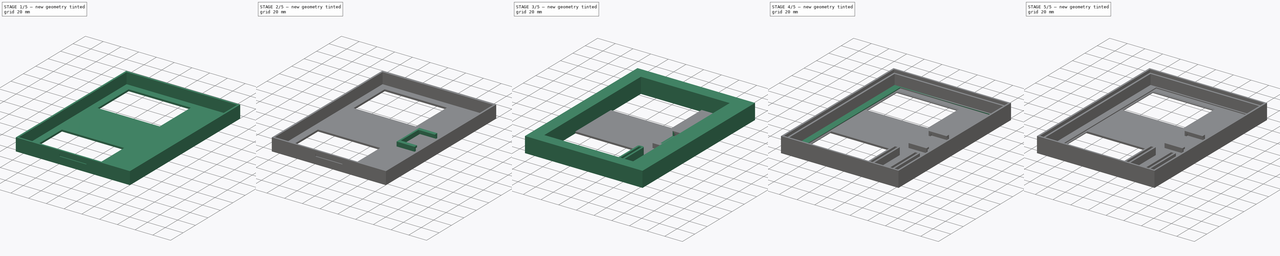
[diagram: build sequence overview — one tinted view per stage of 5, left to right]
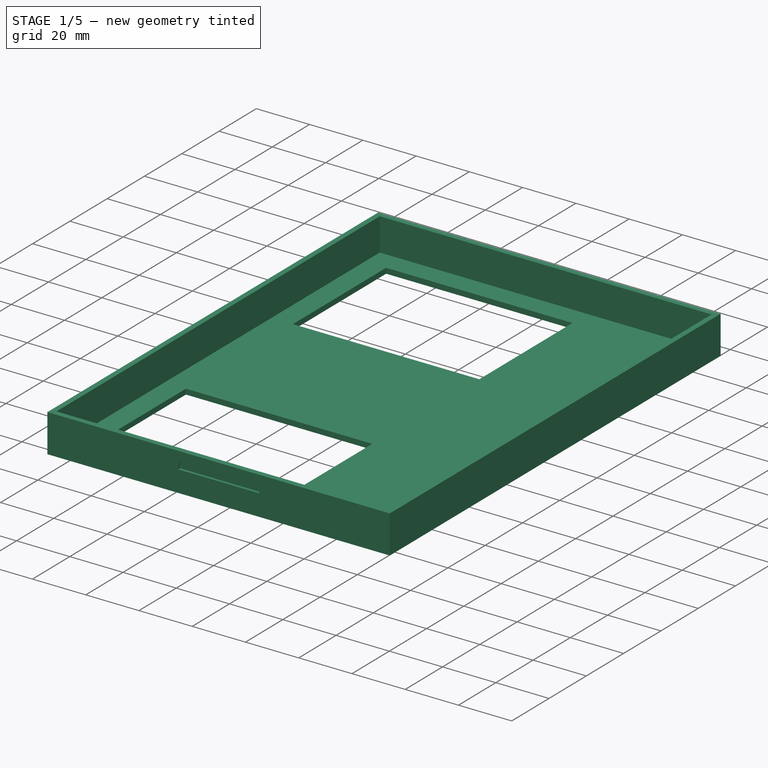
[diagram: stage 1 of 5 — iso view after this stage's code; geometry added in this stage tinted green]
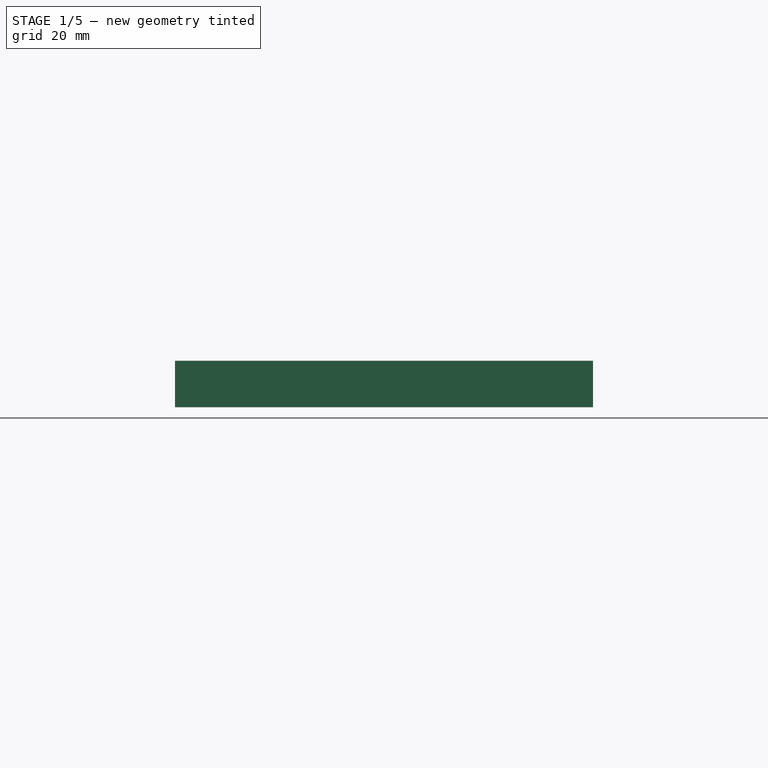
[diagram: stage 1 of 5 — front view after this stage's code; geometry added in this stage tinted green]
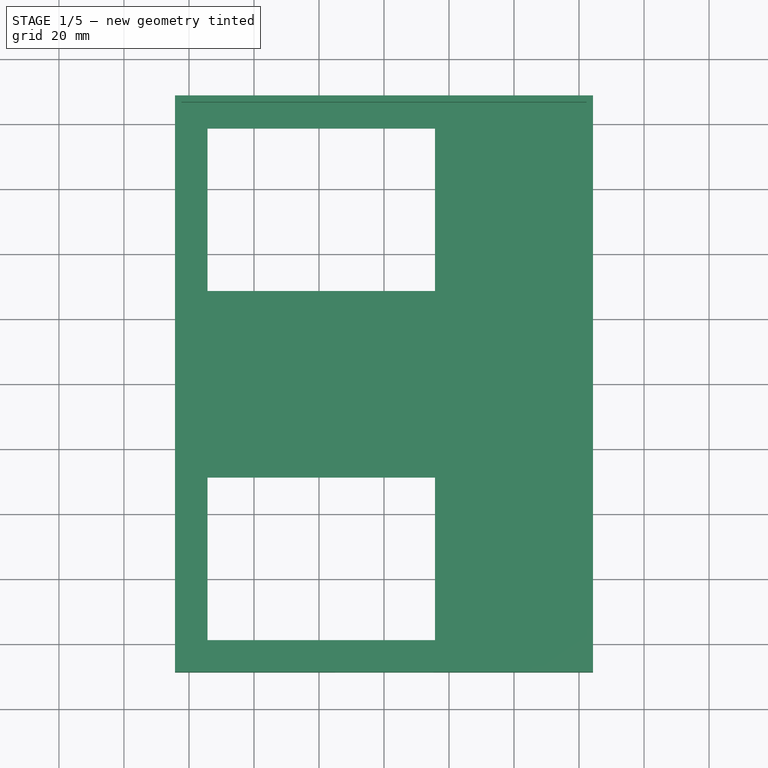
[diagram: stage 1 of 5 — top view after this stage's code; geometry added in this stage tinted green]
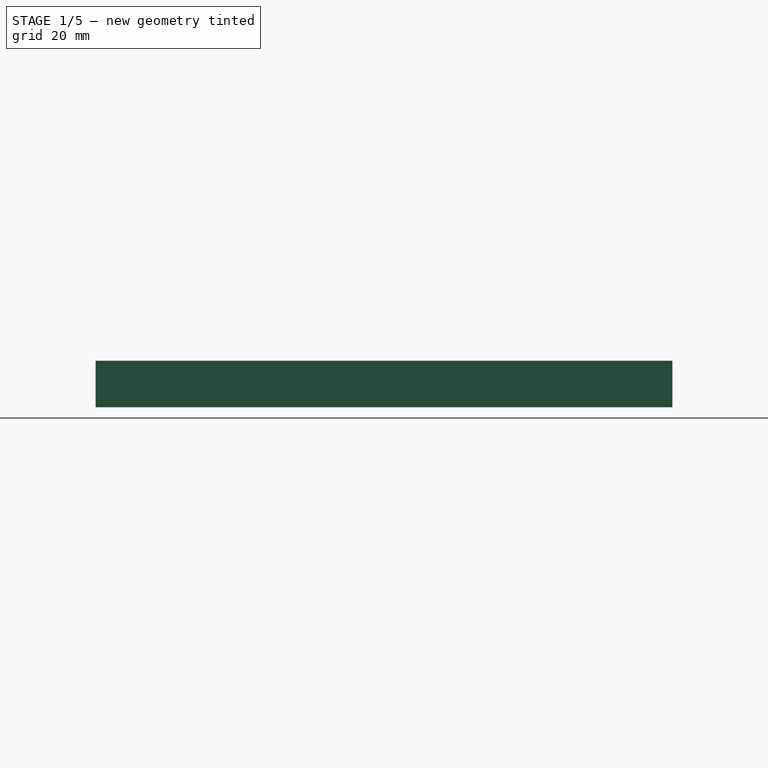
[diagram: stage 1 of 5 — right view after this stage's code; geometry added in this stage tinted green]
FCSTD DOCUMENT  (FreeCAD 1.0R39285 (Git))
Label: display_thing
License: All rights reserved
LicenseURL: https://en.wikipedia.org/wiki/All_rights_reserved
objects: Sketcher::SketchObject×16, PartDesign::Pocket×10, PartDesign::Pad×6, PartDesign::AdditiveCylinder×2, PartDesign::Body×2, PartDesign::Chamfer×1, PartDesign::Fillet×1
note: 94 computed .brp shape members not serialized (recipe doc carries the construction recipe); baked Part::Feature solids carry a one-line shape summary decoded from their .brp

FEATURE [PartDesign::Body] Body  label="frame-mount"
  AllowCompound = false
  Group = -> [Sketch,Pad,Sketch001,Pocket,Sketch002,Pocket001,Chamfer,Sketch003,Pocket002,Sketch004,Pad001,Fillet,Sketch005,Cylinder,Sketch006,Cylinder001]
  Origin = -> Origin
  Tip = -> Cylinder001
FEATURE [Sketcher::SketchObject] Sketch007  label="Insert Base Sketch"
  ArcFitTolerance = 1e-06
  AttachmentSupport = -> [XY_Plane001]
  FullyConstrained = true
  MakeInternals = false
  MapMode = 5
  sketch-geometry (8):
    g0: LineSegment [constr] StartX=0 StartY=0 StartZ=0 EndX=0 EndY=88.7 EndZ=0
    g1: LineSegment [constr] StartX=0 StartY=0 StartZ=0 EndX=0 EndY=-88.7 EndZ=0
    g2: LineSegment [constr] StartX=0 StartY=-88.7 StartZ=0 EndX=-64.3 EndY=-88.7 EndZ=0
    g3: LineSegment [constr] StartX=0 StartY=88.7 StartZ=0 EndX=64.3 EndY=88.7 EndZ=0
    g4: LineSegment StartX=-64.3 StartY=-88.7 StartZ=0 EndX=64.3 EndY=-88.7 EndZ=0
    g5: LineSegment StartX=64.3 StartY=-88.7 StartZ=0 EndX=64.3 EndY=88.7 EndZ=0
    g6: LineSegment StartX=64.3 StartY=88.7 StartZ=0 EndX=-64.3 EndY=88.7 EndZ=0
    g7: LineSegment StartX=-64.3 StartY=88.7 StartZ=0 EndX=-64.3 EndY=-88.7 EndZ=0
  constraints (22):
    c: Distance(g0) = 88.7
    c: Coincident(g0,g-1)
    c: PointOnObject(g0,g-2)
    c: Distance(g1) = 88.7
    c: Coincident(g1,g0)
    c: PointOnObject(g1,g-2)
    c: Distance(g2) = 64.3
    c: Coincident(g2,g1)
    c: Horizontal(g2)
    c: Distance(g3) = 64.3
    c: Coincident(g3,g0)
    c: Horizontal(g3)
    c: Coincident(g4,g5)
    c: Coincident(g5,g6)
    c: Coincident(g6,g7)
    c: Coincident(g7,g4)
    c: Horizontal(g4)
    c: Horizontal(g6)
    c: Vertical(g5)
    c: Vertical(g7)
    c: Coincident(g4,g2)
    c: Coincident(g5,g3)
FEATURE [PartDesign::Pad] Pad002  label="Insert Base"
  Direction = (0,0,1)
  Length = 14.3
  Length2 = 10
  Profile = -> Sketch007
  ReferenceAxis = -> Sketch007 [N_Axis]
  Refine = true
  Suppressed = false
  Type = 0
FEATURE [Sketcher::SketchObject] Sketch008  label="Insert Base Inset Sketch"
  ArcFitTolerance = 1e-06
  AttachmentSupport = -> [Pad002]
  ExternalGeometry = -> [Pad002]
  FullyConstrained = true
  MakeInternals = false
  MapMode = 5
  Placement = pos=(0,0,14.3) rot=(0,0,1;0rad)
  sketch-geometry (24):
    g0: LineSegment StartX=-62.3 StartY=86.7 StartZ=0 EndX=-62.3 EndY=-86.7 EndZ=0
    g1: LineSegment StartX=-62.3 StartY=-86.7 StartZ=0 EndX=62.3 EndY=-86.7 EndZ=0
    g2: LineSegment StartX=62.3 StartY=-86.7 StartZ=0 EndX=62.3 EndY=86.7 EndZ=0
    g3: LineSegment StartX=62.3 StartY=86.7 StartZ=0 EndX=-62.3 EndY=86.7 EndZ=0
    g4: LineSegment [constr] StartX=-64.3 StartY=88.7 StartZ=0 EndX=-44.3 EndY=88.7 EndZ=0
    g5: LineSegment [constr] StartX=-62.3 StartY=68.7 StartZ=0 EndX=-64.3 EndY=68.7 EndZ=0
    g6: LineSegment [constr] StartX=-44.3 StartY=88.7 StartZ=0 EndX=-44.3 EndY=86.7 EndZ=0
    g7: LineSegment [constr] StartX=-64.3 StartY=88.7 StartZ=0 EndX=-64.3 EndY=68.7 EndZ=0
    g8: LineSegment [constr] StartX=64.3 StartY=88.7 StartZ=0 EndX=64.3 EndY=68.7 EndZ=0
    g9: LineSegment [constr] StartX=-64.3 StartY=-88.7 StartZ=0 EndX=-44.3 EndY=-88.7 EndZ=0
    g10: LineSegment [constr] StartX=-44.3 StartY=-88.7 StartZ=0 EndX=-44.3 EndY=-86.7 EndZ=0
    g11: LineSegment [constr] StartX=64.3 StartY=68.7 StartZ=0 EndX=62.3 EndY=68.7 EndZ=0
    g12: LineSegment StartX=-54.3 StartY=78.7 StartZ=0 EndX=-54.3 EndY=28.7 EndZ=0
    g13: LineSegment StartX=-54.3 StartY=28.7 StartZ=0 EndX=15.7 EndY=28.7 EndZ=0
    g14: LineSegment StartX=15.7 StartY=28.7 StartZ=0 EndX=15.7 EndY=78.7 EndZ=0
    g15: LineSegment StartX=15.7 StartY=78.7 StartZ=0 EndX=-54.3 EndY=78.7 EndZ=0
    g16: LineSegment [constr] StartX=-54.3 StartY=28.7 StartZ=0 EndX=-54.3 EndY=-28.7 EndZ=0
    g17: LineSegment StartX=-54.3 StartY=-28.7 StartZ=0 EndX=-54.3 EndY=-78.7 EndZ=0
    g18: LineSegment StartX=-54.3 StartY=-78.7 StartZ=0 EndX=15.7 EndY=-78.7 EndZ=0
    g19: LineSegment StartX=15.7 StartY=-78.7 StartZ=0 EndX=15.7 EndY=-28.7 EndZ=0
    g20: LineSegment StartX=15.7 StartY=-28.7 StartZ=0 EndX=-54.3 EndY=-28.7 EndZ=0
    g21: LineSegment [constr] StartX=-54.3 StartY=53.7 StartZ=0 EndX=-62.3 EndY=53.7 EndZ=0
    g22: LineSegment [constr] StartX=-1.6e-15 StartY=86.7 StartZ=0 EndX=-1.6e-15 EndY=78.7 EndZ=0
    g23: LineSegment [constr] StartX=-7e-16 StartY=-78.7 StartZ=0 EndX=-7e-16 EndY=-86.7 EndZ=0
  constraints (71):
    c: Coincident(g0,g1)
    c: Coincident(g1,g2)
    c: Coincident(g2,g3)
    c: Coincident(g3,g0)
    c: Vertical(g0)
    c: Vertical(g2)
    c: Horizontal(g1)
    c: Horizontal(g3)
    c: Distance(g4) = 20
    c: Coincident(g4,g-4)
    c: PointOnObject(g4,g-3)
    c: PointOnObject(g5,g0)
    c: Horizontal(g5)
    c: Distance(g5) = 2
    c: Distance(g6) = 2
    c: Coincident(g6,g4)
    c: PointOnObject(g6,g3)
    c: Vertical(g6)
    c: Vertical(g7)
    c: Coincident(g7,g4)
    c: Coincident(g7,g5)
    c: Distance(g7) = 20
    c: Distance(g8) = 20
    c: Coincident(g8,g-3)
    c: Vertical(g8)
    c: Distance(g9) = 20
    c: Coincident(g9,g-4)
    c: Horizontal(g9)
    c: Vertical(g10)
    c: Coincident(g10,g9)
    c: PointOnObject(g10,g1)
    c: Distance(g10) = 2
    c: Horizontal(g11)
    c: Coincident(g11,g8)
    c: PointOnObject(g11,g2)
    c: Distance(g11) = 2
    c: Coincident(g12,g13)
    c: Coincident(g13,g14)
    c: Coincident(g14,g15)
    c: Coincident(g15,g12)
    c: Vertical(g12)
    c: Vertical(g14)
    c: Horizontal(g13)
    c: Horizontal(g15)
    c: Vertical(g16)
    c: Coincident(g16,g12)
    c: Coincident(g17,g18)
    c: Coincident(g18,g19)
    c: Coincident(g19,g20)
    c: Coincident(g20,g17)
    c: Vertical(g17)
    c: Vertical(g19)
    c: Horizontal(g18)
    c: Horizontal(g20)
    c: Coincident(g17,g16)
    c: Equal(g12,g17)
    c: Equal(g15,g20)
    c: Distance(g12) = 50
    c: Horizontal(g21)
    c: Symmetric(g12,g12,g21)
    c: PointOnObject(g21,g0)
    c: Distance(g22) = 8
    c: Symmetric(g3,g3,g22)
    c: PointOnObject(g22,g15)
    c: Vertical(g22)
    c: Vertical(g23)
    c: PointOnObject(g23,g18)
    c: Symmetric(g1,g1,g23)
    c: Equal(g22,g23)
    c: Distance(g13) = 70
    c: Distance(g21) = 8
FEATURE [PartDesign::Pocket] Pocket003  label="Insert Base Inset"
  BaseFeature = -> Pad002
  Direction = (0,0,-1)
  Length = 12.3
  Length2 = 5
  Profile = -> Sketch008
  ReferenceAxis = -> Sketch008 [N_Axis]
  Refine = true
  Suppressed = false
  Type = 0
FEATURE [PartDesign::Pocket] Pocket004  label="Base Leftover"
  BaseFeature = -> Pocket003
  Direction = (0,0,-1)
  Length = 14.3
  Length2 = 5
  Profile = -> Pocket003 [Face21,Face20]
  Refine = true
  Suppressed = false
  Type = 0
FEATURE [Sketcher::SketchObject] Sketch009  label="Insert Bottom Mount Inset Sketch"
  ArcFitTolerance = 1e-06
  AttachmentSupport = -> [Pocket004]
  FullyConstrained = true
  MakeInternals = false
  MapMode = 5
  Placement = pos=(0,-88.7,0) rot=(1,0,0;1.5708rad)
  sketch-geometry (8):
    g0: LineSegment [constr] StartX=0 StartY=0 StartZ=0 EndX=0 EndY=8 EndZ=0
    g1: LineSegment [constr] StartX=0 StartY=8 StartZ=0 EndX=15.2 EndY=8 EndZ=0
    g2: LineSegment [constr] StartX=0 StartY=8 StartZ=0 EndX=-15.2 EndY=8 EndZ=0
    g3: LineSegment [constr] StartX=15.2 StartY=8 StartZ=0 EndX=15.2 EndY=10.6 EndZ=0
    g4: LineSegment StartX=-15.2 StartY=8 StartZ=0 EndX=15.2 EndY=8 EndZ=0
    g5: LineSegment StartX=15.2 StartY=8 StartZ=0 EndX=15.2 EndY=10.6 EndZ=0
    g6: LineSegment StartX=15.2 StartY=10.6 StartZ=0 EndX=-15.2 EndY=10.6 EndZ=0
    g7: LineSegment StartX=-15.2 StartY=10.6 StartZ=0 EndX=-15.2 EndY=8 EndZ=0
  constraints (22):
    c: Distance(g0) = 8
    c: Coincident(g0,g-1)
    c: PointOnObject(g0,g-2)
    c: Distance(g1) = 15.2
    c: Coincident(g1,g0)
    c: Horizontal(g1)
    c: Distance(g2) = 15.2
    c: Coincident(g2,g0)
    c: Horizontal(g2)
    c: Distance(g3) = 2.6
    c: Coincident(g3,g1)
    c: Vertical(g3)
    c: Coincident(g4,g5)
    c: Coincident(g5,g6)
    c: Coincident(g6,g7)
    c: Coincident(g7,g4)
    c: Horizontal(g4)
    c: Horizontal(g6)
    c: Vertical(g5)
    c: Vertical(g7)
    c: Coincident(g4,g2)
    c: Coincident(g5,g3)
FEATURE [PartDesign::Pocket] Pocket005  label="Insert Bottom Mount Inset"
  BaseFeature = -> Pocket004
  Direction = (0,1,-2e-16)
  Length = 1
  Length2 = 5
  Profile = -> Sketch009
  ReferenceAxis = -> Sketch009 [N_Axis]
  Refine = true
  Suppressed = false
  Type = 0
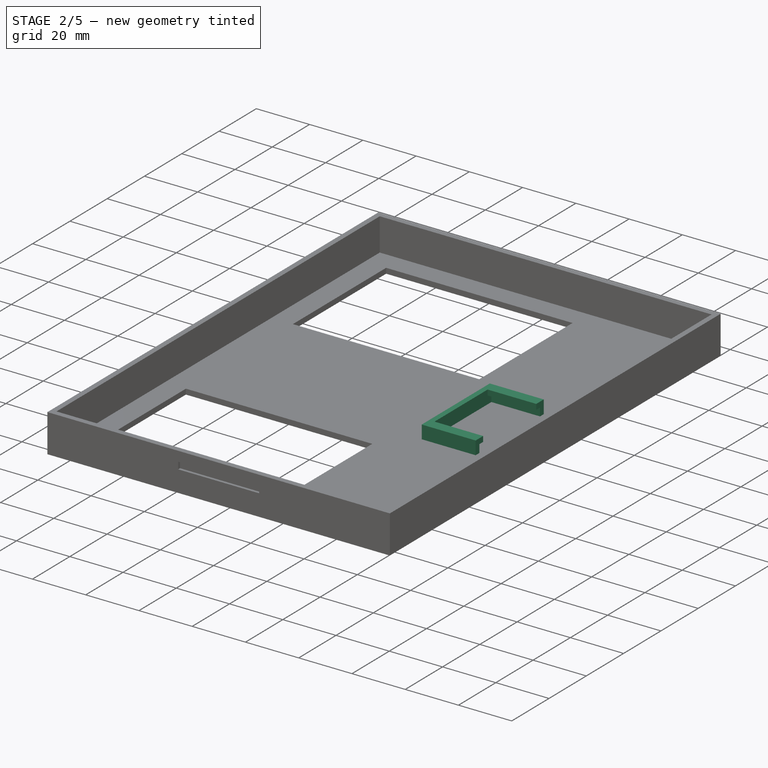
[diagram: stage 2 of 5 — iso view after this stage's code; geometry added in this stage tinted green]
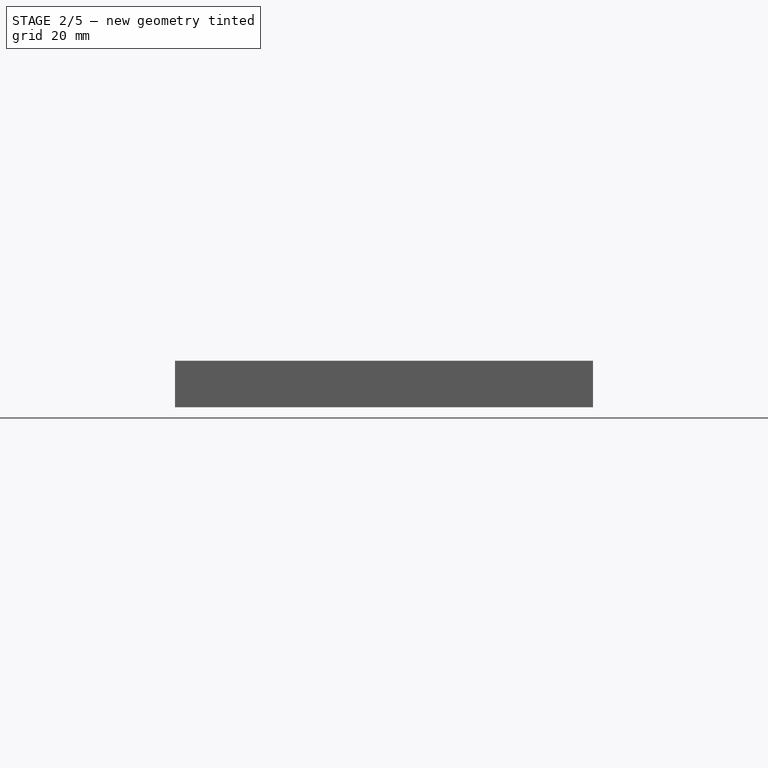
[diagram: stage 2 of 5 — front view after this stage's code; geometry added in this stage tinted green]
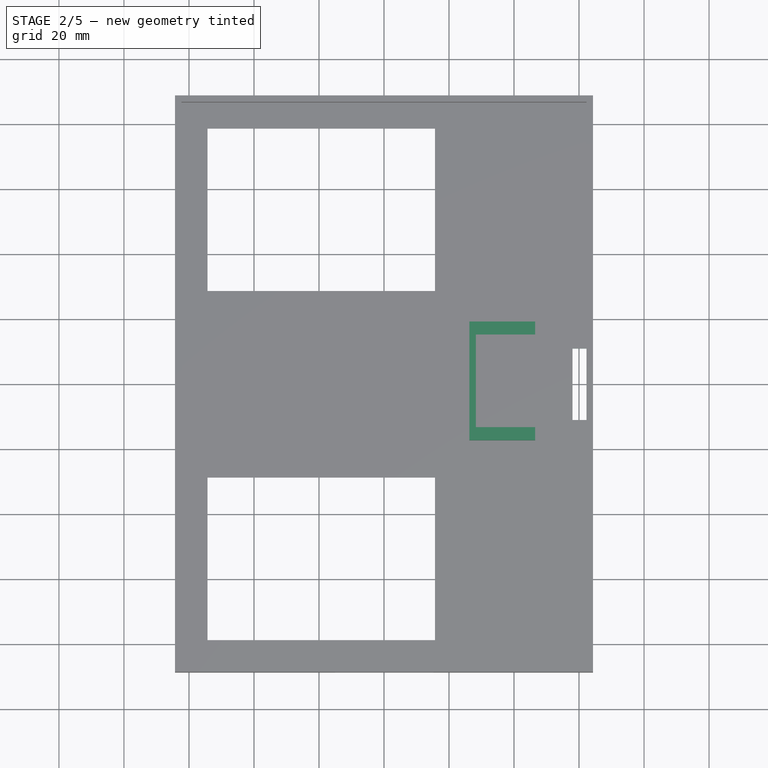
[diagram: stage 2 of 5 — top view after this stage's code; geometry added in this stage tinted green]
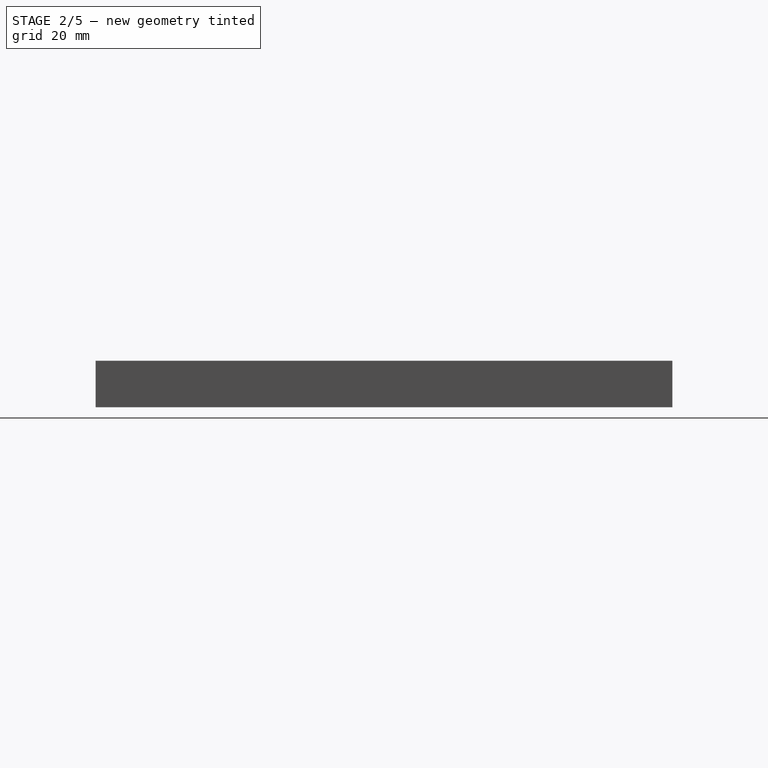
[diagram: stage 2 of 5 — right view after this stage's code; geometry added in this stage tinted green]
FEATURE [Sketcher::SketchObject] Sketch010  label="Insert Top Mount Inset Sketch"
  ArcFitTolerance = 1e-06
  AttachmentSupport = -> [Pocket005]
  FullyConstrained = true
  MakeInternals = false
  MapMode = 5
  Placement = pos=(0,88.7,0) rot=(0,0.707107,0.707107;3.14159rad)
  sketch-geometry (8):
    g0: LineSegment [constr] StartX=0 StartY=0 StartZ=0 EndX=0 EndY=8 EndZ=0
    g1: LineSegment [constr] StartX=0 StartY=8 StartZ=0 EndX=15.2 EndY=8 EndZ=0
    g2: LineSegment [constr] StartX=0 StartY=8 StartZ=0 EndX=-15.2 EndY=8 EndZ=0
    g3: LineSegment [constr] StartX=15.2 StartY=8 StartZ=0 EndX=15.2 EndY=10.6 EndZ=0
    g4: LineSegment StartX=15.2 StartY=10.6 StartZ=0 EndX=-15.2 EndY=10.6 EndZ=0
    g5: LineSegment StartX=-15.2 StartY=10.6 StartZ=0 EndX=-15.2 EndY=8 EndZ=0
    g6: LineSegment StartX=-15.2 StartY=8 StartZ=0 EndX=15.2 EndY=8 EndZ=0
    g7: LineSegment StartX=15.2 StartY=8 StartZ=0 EndX=15.2 EndY=10.6 EndZ=0
  constraints (22):
    c: Distance(g0) = 8
    c: Coincident(g0,g-1)
    c: PointOnObject(g0,g-2)
    c: Distance(g1) = 15.2
    c: Coincident(g1,g0)
    c: Horizontal(g1)
    c: Distance(g2) = 15.2
    c: Coincident(g2,g0)
    c: Horizontal(g2)
    c: Distance(g3) = 2.6
    c: Coincident(g3,g1)
    c: Vertical(g3)
    c: Coincident(g4,g5)
    c: Coincident(g5,g6)
    c: Coincident(g6,g7)
    c: Coincident(g7,g4)
    c: Horizontal(g4)
    c: Horizontal(g6)
    c: Vertical(g5)
    c: Vertical(g7)
    c: Coincident(g4,g3)
    c: Coincident(g5,g2)
FEATURE [PartDesign::Pocket] Pocket006  label="Insert Top Mount Inset"
  BaseFeature = -> Pocket005
  Direction = (0,-1,2e-16)
  Length = 1
  Length2 = 5
  Profile = -> Sketch010
  ReferenceAxis = -> Sketch010 [N_Axis]
  Refine = true
  Suppressed = false
  Type = 0
FEATURE [Sketcher::SketchObject] Sketch013  label="Insert Screen Cable Inset Sketch"
  ArcFitTolerance = 1e-06
  AttachmentSupport = -> [XY_Plane]
  FullyConstrained = true
  MakeInternals = false
  MapMode = 5
  sketch-geometry (8):
    g0: LineSegment [constr] StartX=0 StartY=0 StartZ=0 EndX=58 EndY=0 EndZ=0
    g1: LineSegment [constr] StartX=58 StartY=0 StartZ=0 EndX=58 EndY=11 EndZ=0
    g2: LineSegment [constr] StartX=58 StartY=0 StartZ=0 EndX=58 EndY=-11 EndZ=0
    g3: LineSegment [constr] StartX=58 StartY=-11 StartZ=0 EndX=62.3 EndY=-11 EndZ=0
    g4: LineSegment StartX=58 StartY=11 StartZ=0 EndX=58 EndY=-11 EndZ=0
    g5: LineSegment StartX=58 StartY=-11 StartZ=0 EndX=62.3 EndY=-11 EndZ=0
    g6: LineSegment StartX=62.3 StartY=-11 StartZ=0 EndX=62.3 EndY=11 EndZ=0
    g7: LineSegment StartX=62.3 StartY=11 StartZ=0 EndX=58 EndY=11 EndZ=0
  constraints (22):
    c: Distance(g0) = 58
    c: Coincident(g0,g-1)
    c: PointOnObject(g0,g-1)
    c: Distance(g1) = 11
    c: Coincident(g1,g0)
    c: Vertical(g1)
    c: Distance(g2) = 11
    c: Coincident(g2,g0)
    c: Vertical(g2)
    c: Distance(g3) = 4.3
    c: Coincident(g3,g2)
    c: Horizontal(g3)
    c: Coincident(g4,g5)
    c: Coincident(g5,g6)
    c: Coincident(g6,g7)
    c: Coincident(g7,g4)
    c: Vertical(g4)
    c: Vertical(g6)
    c: Horizontal(g5)
    c: Horizontal(g7)
    c: Coincident(g4,g1)
    c: Coincident(g5,g3)
FEATURE [PartDesign::Pocket] Pocket008  label="Insert Screen Cable Inset"
  BaseFeature = -> Pocket006
  Direction = (0,0,-1)
  Length = 4
  Length2 = 5
  Midplane = true
  Profile = -> Sketch013
  ReferenceAxis = -> Sketch013 [N_Axis]
  Refine = true
  Suppressed = false
  Type = 0
FEATURE [Sketcher::SketchObject] Sketch014  label="Screen Cable Adapter Mount Sketch"
  ArcFitTolerance = 1e-06
  AttachmentSupport = -> [Pocket008]
  ExternalGeometry = -> [Pocket008]
  FullyConstrained = true
  MakeInternals = false
  MapMode = 5
  Placement = pos=(0,0,2) rot=(0,0,1;0rad)
  sketch-geometry (14):
    g0: LineSegment [constr] StartX=58 StartY=11 StartZ=0 EndX=58 EndY=9 EndZ=0
    g1: LineSegment [constr] StartX=58 StartY=-11 StartZ=0 EndX=58 EndY=-7 EndZ=0
    g2: LineSegment [constr] StartX=58 StartY=9 StartZ=0 EndX=58 EndY=1 EndZ=0
    g3: LineSegment [constr] StartX=58 StartY=1 StartZ=0 EndX=46.5 EndY=1 EndZ=0
    g4: LineSegment [constr] StartX=46.5 StartY=1 StartZ=0 EndX=46.5 EndY=17.25 EndZ=0
    g5: LineSegment [constr] StartX=46.5 StartY=1 StartZ=0 EndX=46.5 EndY=-15.25 EndZ=0
    g6: LineSegment StartX=46.5 StartY=17.25 StartZ=0 EndX=46.5 EndY=19.25 EndZ=0
    g7: LineSegment StartX=46.5 StartY=19.25 StartZ=0 EndX=26.25 EndY=19.25 EndZ=0
    g8: LineSegment StartX=26.25 StartY=19.25 StartZ=0 EndX=26.25 EndY=-17.25 EndZ=0
    g9: LineSegment StartX=26.25 StartY=-17.25 StartZ=0 EndX=46.5 EndY=-17.25 EndZ=0
    g10: LineSegment StartX=46.5 StartY=-17.25 StartZ=0 EndX=46.5 EndY=-15.25 EndZ=0
    g11: LineSegment StartX=46.5 StartY=-15.25 StartZ=0 EndX=28.25 EndY=-15.25 EndZ=0
    g12: LineSegment StartX=28.25 StartY=-15.25 StartZ=0 EndX=28.25 EndY=17.25 EndZ=0
    g13: LineSegment StartX=28.25 StartY=17.25 StartZ=0 EndX=46.5 EndY=17.25 EndZ=0
  constraints (40):
    c: Distance(g0) = 2
    c: Coincident(g0,g-3)
    c: PointOnObject(g0,g-3)
    c: Distance(g1) = 4
    c: Coincident(g1,g-3)
    c: PointOnObject(g1,g-3)
    c: Distance(g2) = 8
    c: Coincident(g2,g0)
    c: PointOnObject(g2,g-3)
    c: Distance(g3) = 11.5
    c: Coincident(g3,g2)
    c: Horizontal(g3)
    c: Distance(g4) = 16.25
    c: Coincident(g4,g3)
    c: Vertical(g4)
    c: Distance(g5) = 16.25
    c: Coincident(g5,g3)
    c: Vertical(g5)
    c: Coincident(g4,g6)
    c: Vertical(g6)
    c: Coincident(g6,g7)
    c: Horizontal(g7)
    c: Coincident(g7,g8)
    c: Vertical(g8)
    c: Coincident(g8,g9)
    c: Horizontal(g9)
    c: Coincident(g9,g10)
    c: Coincident(g10,g5)
    c: Vertical(g10)
    c: Coincident(g10,g11)
    c: Horizontal(g11)
    c: Coincident(g11,g12)
    c: Vertical(g12)
    c: Coincident(g12,g13)
    c: Coincident(g13,g6)
    c: DistanceY(g6,g6) = 2
    c: Distance(g10) = 2
    c: Angle(g12,g13) = 1.5708
    c: Distance(g13) = 18.25
    c: Distance(g7) = 20.25
FEATURE [PartDesign::Pad] Pad003  label="Screen Cable Adapter Mount"
  BaseFeature = -> Pocket008
  Direction = (0,0,1)
  Length = 5
  Length2 = 10
  Profile = -> Sketch014
  ReferenceAxis = -> Sketch014 [N_Axis]
  Refine = true
  Suppressed = false
  Type = 0
FEATURE [Sketcher::SketchObject] Sketch015  label="Screen Cable Adapter Mount Holder Sketch"
  ArcFitTolerance = 1e-06
  AttachmentSupport = -> [Pad003]
  ExternalGeometry = -> [Pad003]
  FullyConstrained = true
  MakeInternals = false
  MapMode = 5
  Placement = pos=(28.25,0,0) rot=(0.57735,0.57735,0.57735;2.0944rad)
  sketch-geometry (12):
    g0: LineSegment [constr] StartX=-15.25 StartY=2 StartZ=0 EndX=-13.25 EndY=2 EndZ=0
    g1: LineSegment [constr] StartX=17.25 StartY=2 StartZ=0 EndX=15.25 EndY=2 EndZ=0
    g2: LineSegment [constr] StartX=-13.25 StartY=2 StartZ=0 EndX=-13.25 EndY=5 EndZ=0
    g3: LineSegment [constr] StartX=15.25 StartY=2 StartZ=0 EndX=15.25 EndY=5 EndZ=0
    g4: LineSegment StartX=-15.25 StartY=7 StartZ=0 EndX=-15.25 EndY=5 EndZ=0
    g5: LineSegment StartX=-15.25 StartY=5 StartZ=0 EndX=-13.25 EndY=5 EndZ=0
    g6: LineSegment StartX=-13.25 StartY=5 StartZ=0 EndX=-13.25 EndY=7 EndZ=0
    g7: LineSegment StartX=-13.25 StartY=7 StartZ=0 EndX=-15.25 EndY=7 EndZ=0
    g8: LineSegment StartX=17.25 StartY=7 StartZ=0 EndX=15.25 EndY=7 EndZ=0
    g9: LineSegment StartX=15.25 StartY=7 StartZ=0 EndX=15.25 EndY=5 EndZ=0
    g10: LineSegment StartX=15.25 StartY=5 StartZ=0 EndX=17.25 EndY=5 EndZ=0
    g11: LineSegment StartX=17.25 StartY=5 StartZ=0 EndX=17.25 EndY=7 EndZ=0
  constraints (32):
    c: Distance(g0) = 2
    c: Coincident(g0,g-3)
    c: PointOnObject(g0,g-3)
    c: Distance(g1) = 2
    c: Coincident(g1,g-3)
    c: PointOnObject(g1,g-3)
    c: Distance(g2) = 3
    c: Coincident(g2,g0)
    c: Vertical(g2)
    c: Distance(g3) = 3
    c: Coincident(g3,g1)
    c: Vertical(g3)
    c: Coincident(g4,g5)
    c: Coincident(g5,g6)
    c: Coincident(g6,g7)
    c: Coincident(g7,g4)
    c: Vertical(g4)
    c: Vertical(g6)
    c: Horizontal(g5)
    c: Horizontal(g7)
    c: Coincident(g4,g-4)
    c: Coincident(g5,g2)
    c: Coincident(g8,g9)
    c: Coincident(g9,g10)
    c: Coincident(g10,g11)
    c: Coincident(g11,g8)
    c: Horizontal(g8)
    c: Horizontal(g10)
    c: Vertical(g9)
    c: Vertical(g11)
    c: Coincident(g8,g-5)
    c: Coincident(g9,g3)
FEATURE [PartDesign::Pad] Pad004  label="Screen Cable Adapter Mount Holder"
  BaseFeature = -> Pad003
  Direction = (1,0,0)
  Length = 18.25
  Length2 = 10
  Profile = -> Sketch015
  ReferenceAxis = -> Sketch015 [N_Axis]
  Refine = true
  Suppressed = false
  Type = 0
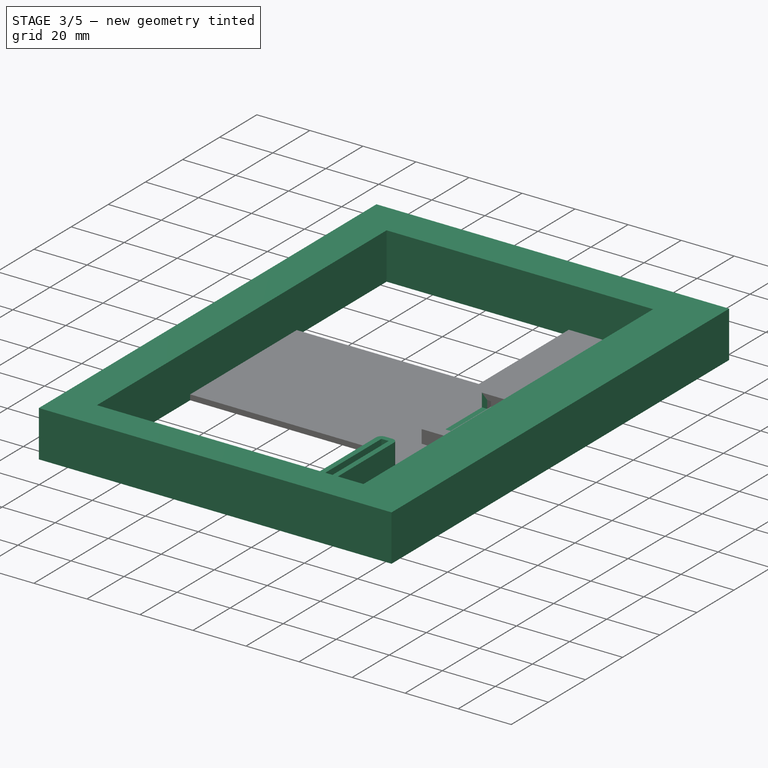
[diagram: stage 3 of 5 — iso view after this stage's code; geometry added in this stage tinted green]
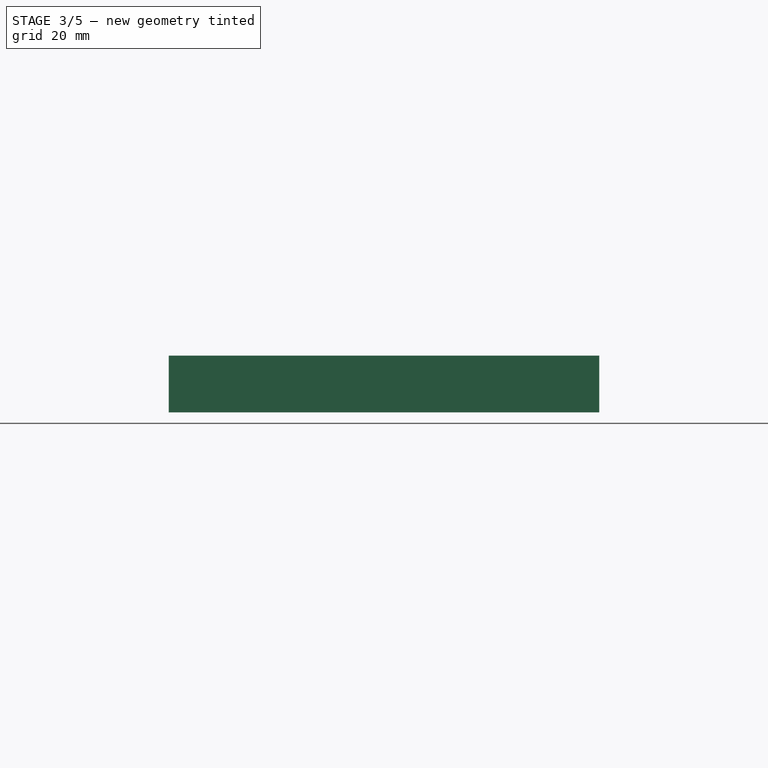
[diagram: stage 3 of 5 — front view after this stage's code; geometry added in this stage tinted green]
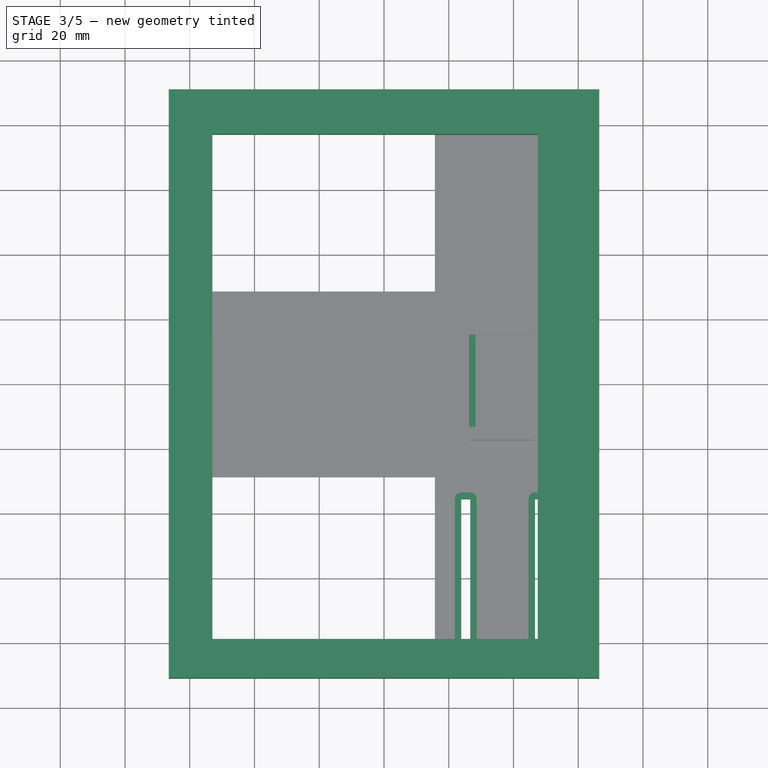
[diagram: stage 3 of 5 — top view after this stage's code; geometry added in this stage tinted green]
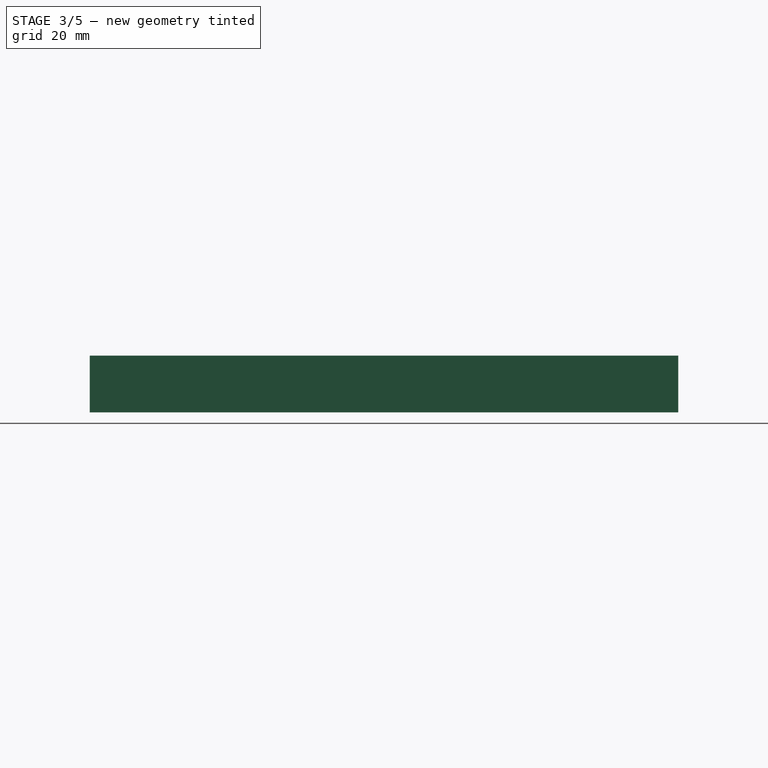
[diagram: stage 3 of 5 — right view after this stage's code; geometry added in this stage tinted green]
FEATURE [Sketcher::SketchObject] Sketch  label="Base Sketch"
  ArcFitTolerance = 1e-06
  AttachmentSupport = -> [XY_Plane]
  FullyConstrained = true
  MakeInternals = false
  MapMode = 5
  sketch-geometry (10):
    g0: LineSegment StartX=-66.5 StartY=90.9 StartZ=0 EndX=-66.5 EndY=-90.9 EndZ=0
    g1: LineSegment StartX=-66.5 StartY=-90.9 StartZ=0 EndX=66.5 EndY=-90.9 EndZ=0
    g2: LineSegment StartX=66.5 StartY=-90.9 StartZ=0 EndX=66.5 EndY=90.9 EndZ=0
    g3: LineSegment StartX=66.5 StartY=90.9 StartZ=0 EndX=-66.5 EndY=90.9 EndZ=0
    g4: LineSegment StartX=-53 StartY=77.1 StartZ=0 EndX=-53 EndY=-78.9 EndZ=0
    g5: LineSegment StartX=-53 StartY=-78.9 StartZ=0 EndX=47.5 EndY=-78.9 EndZ=0
    g6: LineSegment StartX=47.5 StartY=-78.9 StartZ=0 EndX=47.5 EndY=77.1 EndZ=0
    g7: LineSegment StartX=47.5 StartY=77.1 StartZ=0 EndX=-53 EndY=77.1 EndZ=0
    g8: LineSegment [constr] StartX=47.5 StartY=77.1 StartZ=0 EndX=66.5 EndY=77.1 EndZ=0
    g9: LineSegment [constr] StartX=-53 StartY=-78.9 StartZ=0 EndX=-53 EndY=-90.9 EndZ=0
  constraints (29):
    c: Coincident(g0,g1)
    c: Coincident(g1,g2)
    c: Coincident(g2,g3)
    c: Coincident(g3,g0)
    c: Vertical(g0)
    c: Vertical(g2)
    c: Horizontal(g1)
    c: Horizontal(g3)
    c: Distance(g0,g2) = 133
    c: Distance(g1,g3) = 181.8
    c: Symmetric(g0,g1,g-1)
    c: Coincident(g4,g5)
    c: Coincident(g5,g6)
    c: Coincident(g6,g7)
    c: Coincident(g7,g4)
    c: Vertical(g4)
    c: Vertical(g6)
    c: Horizontal(g5)
    c: Horizontal(g7)
    c: Distance(g4,g6) = 100.5
    c: Distance(g5,g7) = 156
    c: Distance(g8) = 19
    c: Coincident(g8,g6)
    c: PointOnObject(g8,g2)
    c: Horizontal(g8)
    c: Distance(g9) = 12
    c: Coincident(g9,g4)
    c: PointOnObject(g9,g1)
    c: Vertical(g9)
FEATURE [PartDesign::Pad] Pad  label="Base"
  Direction = (0,0,1)
  Length = 17.5
  Length2 = 10
  Profile = -> Sketch
  ReferenceAxis = -> Sketch [N_Axis]
  Refine = true
  Suppressed = false
  Type = 0
FEATURE [Sketcher::SketchObject] Sketch016  label="Screen Cable Adapter Holder Inset Sketch"
  ArcFitTolerance = 1e-06
  AttachmentSupport = -> [Pad004]
  ExternalGeometry = -> [Pad004]
  FullyConstrained = true
  MakeInternals = false
  MapMode = 5
  Placement = pos=(0,0,7) rot=(0,0,1;0rad)
  sketch-geometry (6):
    g0: LineSegment [constr] StartX=28.25 StartY=15.25 StartZ=0 EndX=26.25 EndY=15.25 EndZ=0
    g1: LineSegment [constr] StartX=28.25 StartY=-13.25 StartZ=0 EndX=26.25 EndY=-13.25 EndZ=0
    g2: LineSegment StartX=28.25 StartY=15.25 StartZ=0 EndX=26.25 EndY=15.25 EndZ=0
    g3: LineSegment StartX=26.25 StartY=15.25 StartZ=0 EndX=26.25 EndY=-13.25 EndZ=0
    g4: LineSegment StartX=26.25 StartY=-13.25 StartZ=0 EndX=28.25 EndY=-13.25 EndZ=0
    g5: LineSegment StartX=28.25 StartY=-13.25 StartZ=0 EndX=28.25 EndY=15.25 EndZ=0
  constraints (16):
    c: Coincident(g0,g-3)
    c: PointOnObject(g0,g-4)
    c: Horizontal(g0)
    c: Coincident(g1,g-3)
    c: PointOnObject(g1,g-4)
    c: Horizontal(g1)
    c: Coincident(g2,g3)
    c: Coincident(g3,g4)
    c: Coincident(g4,g5)
    c: Coincident(g5,g2)
    c: Horizontal(g2)
    c: Horizontal(g4)
    c: Vertical(g3)
    c: Vertical(g5)
    c: Coincident(g2,g0)
    c: Coincident(g3,g1)
FEATURE [PartDesign::Pocket] Pocket009  label="Screen Cable Adapter Holder Inset"
  BaseFeature = -> Pad004
  Direction = (0,0,-1)
  Length = 5
  Length2 = 5
  Profile = -> Sketch016
  ReferenceAxis = -> Sketch016 [N_Axis]
  Refine = true
  Suppressed = false
  Type = 0
FEATURE [Sketcher::SketchObject] Sketch017  label="Microcontroller Holder Sketch"
  ArcFitTolerance = 1e-06
  AttachmentSupport = -> [Pocket009]
  ExternalGeometry = -> [Pocket009]
  FullyConstrained = true
  MakeInternals = false
  MapMode = 5
  Placement = pos=(0,0,2) rot=(0,0,1;0rad)
  sketch-geometry (37):
    g0: LineSegment [constr] StartX=46.5 StartY=-17.25 StartZ=0 EndX=51.5 EndY=-17.25 EndZ=0
    g1: LineSegment [constr] StartX=51.5 StartY=-17.25 StartZ=0 EndX=51.5 EndY=-35.25 EndZ=0
    g2: LineSegment [constr] StartX=51.5 StartY=-35.25 StartZ=0 EndX=21.75 EndY=-35.25 EndZ=0
    g3: LineSegment [constr] StartX=51.5 StartY=-35.25 StartZ=0 EndX=51.5 EndY=-84 EndZ=0
    g4: LineSegment [constr] StartX=21.75 StartY=-35.25 StartZ=0 EndX=21.75 EndY=-84 EndZ=0
    g5: LineSegment [constr] StartX=21.75 StartY=-84 StartZ=0 EndX=51.5 EndY=-84 EndZ=0
    g6: LineSegment [constr] StartX=51.5 StartY=-84 StartZ=0 EndX=51.5 EndY=-35.25 EndZ=0
    g7: LineSegment [constr] StartX=51.5 StartY=-35.25 StartZ=0 EndX=21.75 EndY=-35.25 EndZ=0
    g8: LineSegment StartX=49.375 StartY=-35.5 StartZ=0 EndX=46.625 EndY=-35.5 EndZ=0
    g9: LineSegment StartX=46.625 StartY=-35.5 StartZ=0 EndX=46.625 EndY=-83.75 EndZ=0
    g10: LineSegment StartX=46.625 StartY=-83.75 StartZ=0 EndX=49.375 EndY=-83.75 EndZ=0
    g11: LineSegment StartX=49.375 StartY=-83.75 StartZ=0 EndX=49.375 EndY=-35.5 EndZ=0
    g12: LineSegment StartX=26.625 StartY=-35.5 StartZ=0 EndX=23.875 EndY=-35.5 EndZ=0
    g13: LineSegment StartX=23.875 StartY=-35.5 StartZ=0 EndX=23.875 EndY=-83.75 EndZ=0
    g14: LineSegment StartX=23.875 StartY=-83.75 StartZ=0 EndX=26.625 EndY=-83.75 EndZ=0
    g15: LineSegment StartX=26.625 StartY=-83.75 StartZ=0 EndX=26.625 EndY=-35.5 EndZ=0
    g16: LineSegment [constr] StartX=49.375 StartY=-35.5 StartZ=0 EndX=23.875 EndY=-35.5 EndZ=0
    g17: LineSegment [constr] StartX=49.375 StartY=-35.5 StartZ=0 EndX=49.375 EndY=-35.25 EndZ=0
    g18: LineSegment [constr] StartX=49.375 StartY=-35.5 StartZ=0 EndX=51.5 EndY=-35.5 EndZ=0
    g19: LineSegment StartX=49.375 StartY=-33.5 StartZ=0 EndX=46.625 EndY=-33.5 EndZ=0
    g20: ArcOfCircle CenterX=46.625 CenterY=-35.5 CenterZ=0 NormalX=0 NormalY=0 NormalZ=-1 AngleXU=-1.5708 Radius=2 StartAngle=1.5708 EndAngle=3.14159
    g21: LineSegment StartX=44.625 StartY=-35.5 StartZ=0 EndX=44.625 EndY=-83.75 EndZ=0
    g22: ArcOfCircle CenterX=46.625 CenterY=-83.75 CenterZ=0 NormalX=0 NormalY=0 NormalZ=-1 AngleXU=-3.14159 Radius=2 StartAngle=1.5708 EndAngle=3.14159
    g23: LineSegment StartX=46.625 StartY=-85.75 StartZ=0 EndX=49.375 EndY=-85.75 EndZ=0
    g24: ArcOfCircle CenterX=49.375 CenterY=-83.75 CenterZ=0 NormalX=0 NormalY=0 NormalZ=-1 AngleXU=1.5708 Radius=2 StartAngle=1.5708 EndAngle=3.14159
    g25: LineSegment StartX=51.375 StartY=-83.75 StartZ=0 EndX=51.375 EndY=-35.5 EndZ=0
    g26: ArcOfCircle CenterX=49.375 CenterY=-35.5 CenterZ=0 NormalX=0 NormalY=0 NormalZ=-1 AngleXU=0 Radius=2 StartAngle=1.5708 EndAngle=3.14159
    g27: LineSegment StartX=23.875 StartY=-85.75 StartZ=0 EndX=26.625 EndY=-85.75 EndZ=0
    g28: ArcOfCircle CenterX=26.625 CenterY=-83.75 CenterZ=0 NormalX=0 NormalY=0 NormalZ=-1 AngleXU=1.5708 Radius=2 StartAngle=1.5708 EndAngle=3.14159
    g29: LineSegment StartX=28.625 StartY=-83.75 StartZ=0 EndX=28.625 EndY=-35.5 EndZ=0
    g30: ArcOfCircle CenterX=26.625 CenterY=-35.5 CenterZ=0 NormalX=0 NormalY=0 NormalZ=-1 AngleXU=0 Radius=2 StartAngle=1.5708 EndAngle=3.14159
    g31: LineSegment StartX=26.625 StartY=-33.5 StartZ=0 EndX=23.875 EndY=-33.5 EndZ=0
    g32: ArcOfCircle CenterX=23.875 CenterY=-35.5 CenterZ=0 NormalX=0 NormalY=0 NormalZ=-1 AngleXU=-1.5708 Radius=2 StartAngle=1.5708 EndAngle=3.14159
    g33: LineSegment StartX=21.875 StartY=-35.5 StartZ=0 EndX=21.875 EndY=-83.75 EndZ=0
    g34: ArcOfCircle CenterX=23.875 CenterY=-83.75 CenterZ=0 NormalX=0 NormalY=0 NormalZ=-1 AngleXU=-3.14159 Radius=2 StartAngle=1.5708 EndAngle=3.14159
    g35: LineSegment [constr] StartX=49.375 StartY=-83.75 StartZ=0 EndX=51.375 EndY=-83.75 EndZ=0
    g36: LineSegment [constr] StartX=23.875 StartY=-35.5 StartZ=0 EndX=21.875 EndY=-35.5 EndZ=0
  constraints (90):
    c: Distance(g0) = 5
    c: Coincident(g0,g-3)
    c: Horizontal(g0)
    c: Distance(g1) = 18
    c: Coincident(g1,g0)
    c: Vertical(g1)
    c: Distance(g2) = 29.75
    c: Coincident(g2,g1)
    c: Horizontal(g2)
    c: Distance(g3) = 48.75
    c: Coincident(g3,g1)
    c: Vertical(g3)
    c: Coincident(g4,g5)
    c: Coincident(g5,g6)
    c: Coincident(g6,g7)
    c: Coincident(g7,g4)
    c: Vertical(g4)
    c: Vertical(g6)
    c: Horizontal(g5)
    c: Horizontal(g7)
    c: Coincident(g4,g2)
    c: Coincident(g5,g3)
    c: Coincident(g8,g9)
    c: Coincident(g9,g10)
    c: Coincident(g10,g11)
    c: Coincident(g11,g8)
    c: Horizontal(g8)
    c: Horizontal(g10)
    c: Vertical(g9)
    c: Vertical(g11)
    c: Coincident(g12,g13)
    c: Coincident(g13,g14)
    c: Coincident(g14,g15)
    c: Coincident(g15,g12)
    c: Horizontal(g12)
    c: Horizontal(g14)
    c: Vertical(g13)
    c: Vertical(g15)
    c: Coincident(g16,g8)
    c: Coincident(g16,g12)
    c: Distance(g16) = 25.5
    c: Horizontal(g16)
    c: Distance(g8) = 2.75
    c: Equal(g8,g12)
    c: Distance(g11) = 48.25
    c: Equal(g11,g15)
    c: Coincident(g17,g8)
    c: PointOnObject(g17,g2)
    c: Distance(g17) = 0.25
    c: Vertical(g17)
    c: Coincident(g18,g8)
    c: PointOnObject(g18,g3)
    c: Distance(g18) = 2.125
    c: Horizontal(g18)
    c: Tangent(g19,g20) = -1.5708
    c: Tangent(g19,g26) = -1.5708
    c: Tangent(g20,g21) = -1.5708
    c: Tangent(g21,g22) = -1.5708
    c: Tangent(g22,g23) = -1.5708
    c: Tangent(g23,g24) = -1.5708
    c: Tangent(g24,g25) = -1.5708
    c: Tangent(g25,g26) = -1.5708
    c: Tangent(g27,g28) = -1.5708
    c: Tangent(g27,g34) = -1.5708
    c: Tangent(g28,g29) = -1.5708
    c: Tangent(g29,g30) = -1.5708
    c: Tangent(g30,g31) = -1.5708
    c: Tangent(g31,g32) = -1.5708
    c: Tangent(g32,g33) = -1.5708
    c: Tangent(g33,g34) = -1.5708
    c: Coincident(g26,g11)
    c: Parallel(g19,g12)
    c: Coincident(g20,g9)
    c: Parallel(g21,g9)
    c: Coincident(g22,g10)
    c: Parallel(g23,g14)
    c: Coincident(g24,g10)
    c: Coincident(g34,g13)
    c: Parallel(g27,g14)
    c: Coincident(g28,g15)
    c: Parallel(g29,g15)
    c: Coincident(g30,g12)
    c: Parallel(g31,g12)
    c: Coincident(g32,g12)
    c: Coincident(g35,g10)
    c: Coincident(g35,g24)
    c: Coincident(g36,g12)
    c: Coincident(g36,g32)
    c: Equal(g36,g35)
    c: Distance(g35) = 2
FEATURE [PartDesign::Pad] Pad005  label="Microcontroller Holder"
  BaseFeature = -> Pocket009
  Direction = (0,0,1)
  Length = 8
  Length2 = 10
  Profile = -> Sketch017
  ReferenceAxis = -> Sketch017 [N_Axis]
  Refine = true
  Suppressed = false
  Type = 0
FEATURE [PartDesign::Pocket] Pocket010  label="Microcontroller Pin Clearence Inset"
  BaseFeature = -> Pad005
  Direction = (0,0,-1)
  Length = 2
  Length2 = 5
  Profile = -> Pad005 [Face76,Face75]
  Refine = true
  Suppressed = false
  Type = 0
FEATURE [PartDesign::Body] Body001  label="frame-insert"
  AllowCompound = false
  Group = -> [Sketch007,Pad002,Sketch008,Pocket003,Pocket004,Sketch009,Pocket005,Sketch010,Pocket006,Sketch013,Pocket008,Sketch014,Pad003,Sketch015,Pad004,Sketch016,Pocket009,Sketch017,Pad005,Pocket010]
  Origin = -> Origin001
  Placement = pos=(0,0,3.2) rot=(0,0,1;0rad)
  Tip = -> Pocket010
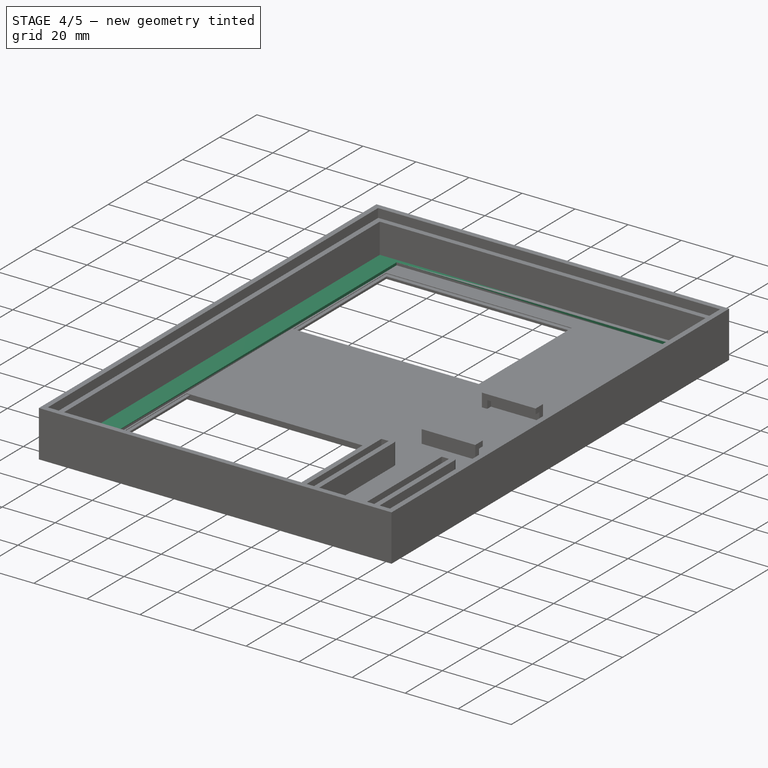
[diagram: stage 4 of 5 — iso view after this stage's code; geometry added in this stage tinted green]
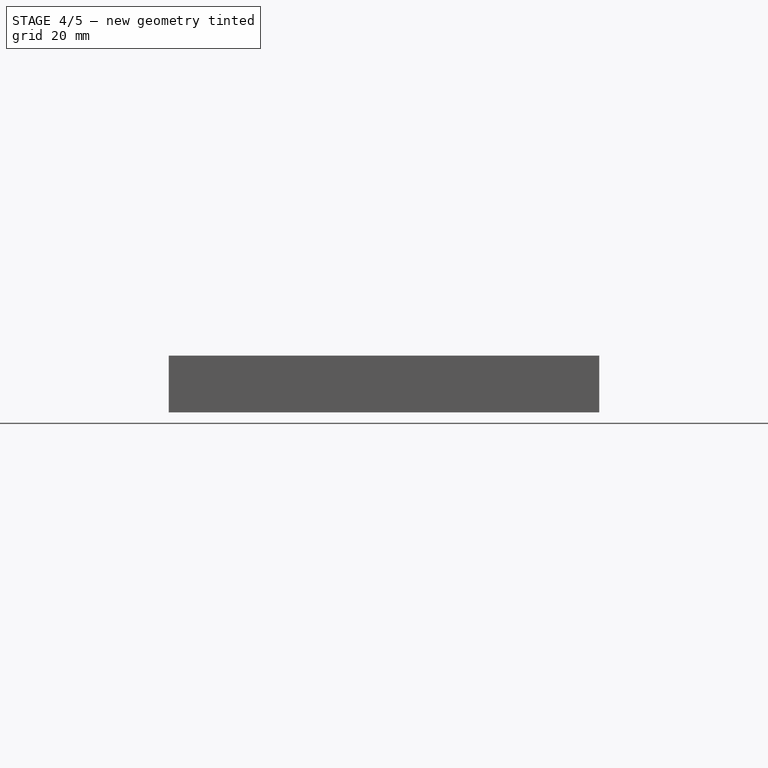
[diagram: stage 4 of 5 — front view after this stage's code; geometry added in this stage tinted green]
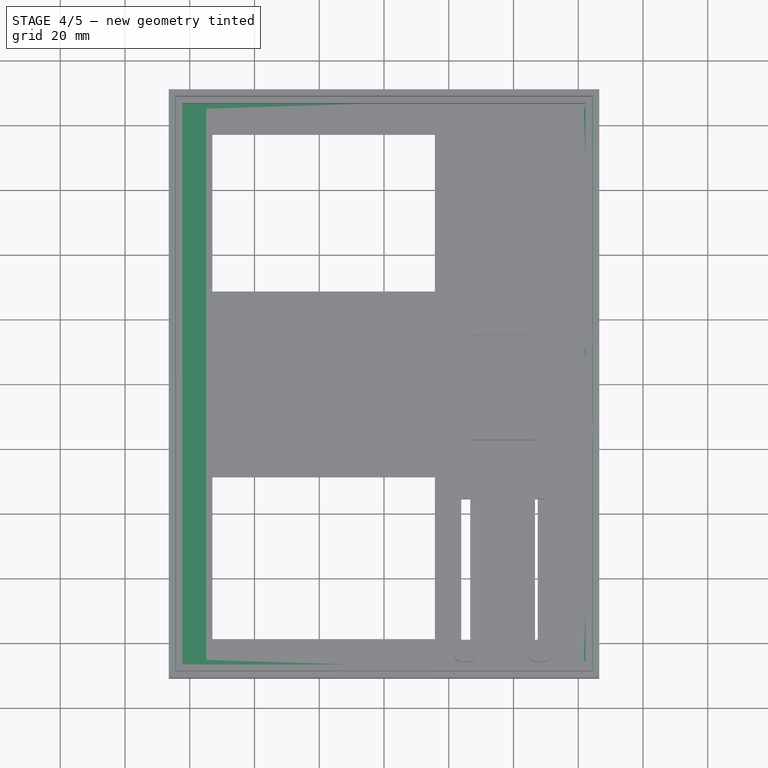
[diagram: stage 4 of 5 — top view after this stage's code; geometry added in this stage tinted green]
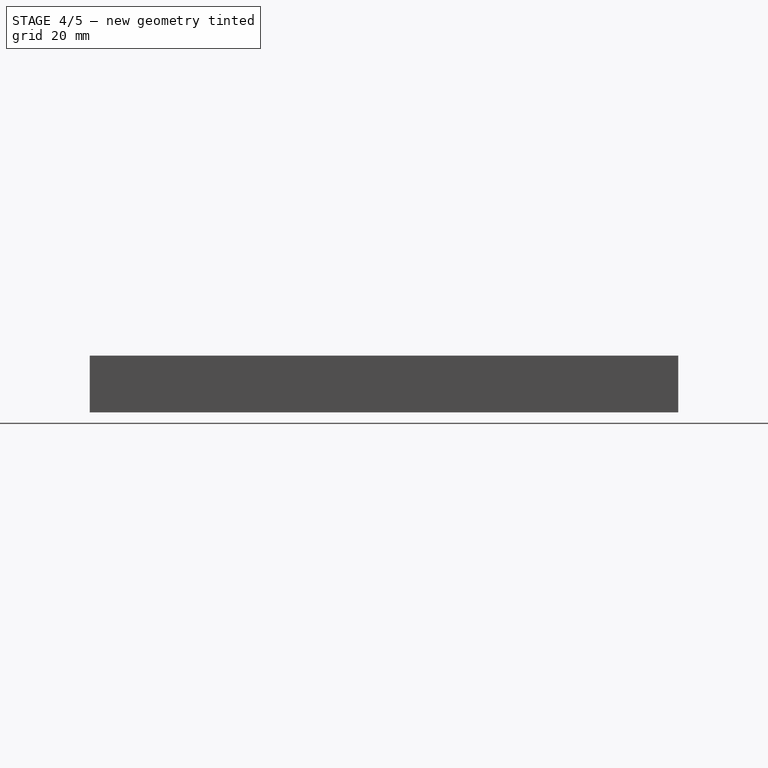
[diagram: stage 4 of 5 — right view after this stage's code; geometry added in this stage tinted green]
FEATURE [Sketcher::SketchObject] Sketch001  label="Base Inset Sketch"
  ArcFitTolerance = 1e-06
  AttachmentSupport = -> [Pad]
  ExternalGeometry = -> [Pad]
  FullyConstrained = true
  MakeInternals = false
  MapMode = 5
  Placement = pos=(0,0,17.5) rot=(0,0,1;0rad)
  sketch-geometry (8):
    g0: LineSegment [constr] StartX=-66.5 StartY=90.9 StartZ=0 EndX=-66.5 EndY=88.9 EndZ=0
    g1: LineSegment [constr] StartX=-66.5 StartY=88.9 StartZ=0 EndX=-64.5 EndY=88.9 EndZ=0
    g2: LineSegment [constr] StartX=66.5 StartY=-90.9 StartZ=0 EndX=66.5 EndY=-88.9 EndZ=0
    g3: LineSegment [constr] StartX=66.5 StartY=-88.9 StartZ=0 EndX=64.5 EndY=-88.9 EndZ=0
    g4: LineSegment StartX=64.5 StartY=-88.9 StartZ=0 EndX=64.5 EndY=88.9 EndZ=0
    g5: LineSegment StartX=64.5 StartY=88.9 StartZ=0 EndX=-64.5 EndY=88.9 EndZ=0
    g6: LineSegment StartX=-64.5 StartY=88.9 StartZ=0 EndX=-64.5 EndY=-88.9 EndZ=0
    g7: LineSegment StartX=-64.5 StartY=-88.9 StartZ=0 EndX=64.5 EndY=-88.9 EndZ=0
  constraints (22):
    c: Distance(g0) = 2
    c: Coincident(g0,g-4)
    c: PointOnObject(g0,g-4)
    c: Distance(g1) = 2
    c: Coincident(g1,g0)
    c: Horizontal(g1)
    c: Distance(g2) = 2
    c: Coincident(g2,g-6)
    c: PointOnObject(g2,g-6)
    c: Distance(g3) = 2
    c: Coincident(g3,g2)
    c: Horizontal(g3)
    c: Coincident(g4,g5)
    c: Coincident(g5,g6)
    c: Coincident(g6,g7)
    c: Coincident(g7,g4)
    c: Vertical(g4)
    c: Vertical(g6)
    c: Horizontal(g5)
    c: Horizontal(g7)
    c: Coincident(g4,g3)
    c: Coincident(g5,g1)
FEATURE [PartDesign::Pocket] Pocket  label="Base Inset"
  BaseFeature = -> Pad
  Direction = (0,0,-1)
  Length = 14.5
  Length2 = 5
  Profile = -> Sketch001
  ReferenceAxis = -> Sketch001 [N_Axis]
  Refine = true
  Suppressed = false
  Type = 0
FEATURE [Sketcher::SketchObject] Sketch002  label="Screen Inset Sketch"
  ArcFitTolerance = 1e-06
  AttachmentSupport = -> [Pocket]
  ExternalGeometry = -> [Pocket]
  FullyConstrained = true
  MakeInternals = false
  MapMode = 5
  Placement = pos=(0,0,3) rot=(0,0,1;0rad)
  sketch-geometry (8):
    g0: LineSegment [constr] StartX=-64.5 StartY=88.9 StartZ=0 EndX=-54.9 EndY=88.9 EndZ=0
    g1: LineSegment [constr] StartX=-54.9 StartY=88.9 StartZ=0 EndX=-54.9 EndY=85.15 EndZ=0
    g2: LineSegment [constr] StartX=64.5 StartY=-88.9 StartZ=0 EndX=61.7 EndY=-88.9 EndZ=0
    g3: LineSegment [constr] StartX=61.7 StartY=-88.9 StartZ=0 EndX=61.7 EndY=-85.15 EndZ=0
    g4: LineSegment StartX=-54.9 StartY=85.15 StartZ=0 EndX=-54.9 EndY=-85.15 EndZ=0
    g5: LineSegment StartX=-54.9 StartY=-85.15 StartZ=0 EndX=61.7 EndY=-85.15 EndZ=0
    g6: LineSegment StartX=61.7 StartY=-85.15 StartZ=0 EndX=61.7 EndY=85.15 EndZ=0
    g7: LineSegment StartX=61.7 StartY=85.15 StartZ=0 EndX=-54.9 EndY=85.15 EndZ=0
  constraints (22):
    c: Distance(g0) = 9.6
    c: Coincident(g0,g-4)
    c: PointOnObject(g0,g-4)
    c: Distance(g1) = 3.75
    c: Coincident(g1,g0)
    c: Vertical(g1)
    c: Distance(g2) = 2.8
    c: Coincident(g2,g-6)
    c: PointOnObject(g2,g-6)
    c: Distance(g3) = 3.75
    c: Coincident(g3,g2)
    c: Vertical(g3)
    c: Coincident(g4,g5)
    c: Coincident(g5,g6)
    c: Coincident(g6,g7)
    c: Coincident(g7,g4)
    c: Vertical(g4)
    c: Vertical(g6)
    c: Horizontal(g5)
    c: Horizontal(g7)
    c: Coincident(g4,g1)
    c: Coincident(g5,g3)
FEATURE [PartDesign::Pocket] Pocket001  label="Screen Inset"
  BaseFeature = -> Pocket
  Direction = (0,0,-1)
  Length = 1.2
  Length2 = 5
  Profile = -> Sketch002
  ReferenceAxis = -> Sketch002 [N_Axis]
  Refine = true
  Suppressed = false
  Type = 0
FEATURE [PartDesign::Chamfer] Chamfer  label="Frame Decor Chamfer"
  Angle = 45
  Base = -> Pocket001 [Edge13,Edge12,Edge14,Edge15]
  BaseFeature = -> Pocket001
  ChamferType = 1
  FlipDirection = false
  Refine = true
  Size = 2
  Size2 = 1
  SupportTransform = false
  Suppressed = false
  UseAllEdges = false
FEATURE [Sketcher::SketchObject] Sketch003  label="Screen Cable Inset Sketch"
  ArcFitTolerance = 1e-06
  AttachmentSupport = -> [Chamfer]
  ExternalGeometry = -> [Chamfer]
  FullyConstrained = true
  MakeInternals = false
  MapMode = 5
  Placement = pos=(0,0,3) rot=(0,0,1;0rad)
  sketch-geometry (6):
    g0: LineSegment [constr] StartX=61.7 StartY=-85.15 StartZ=0 EndX=61.7 EndY=-13.15 EndZ=0
    g1: LineSegment [constr] StartX=61.7 StartY=85.15 StartZ=0 EndX=61.7 EndY=13.15 EndZ=0
    g2: LineSegment StartX=61.7 StartY=13.15 StartZ=0 EndX=61.7 EndY=-13.15 EndZ=0
    g3: LineSegment StartX=61.7 StartY=-13.15 StartZ=0 EndX=64.5 EndY=-13.15 EndZ=0
    g4: LineSegment StartX=64.5 StartY=-13.15 StartZ=0 EndX=64.5 EndY=13.15 EndZ=0
    g5: LineSegment StartX=64.5 StartY=13.15 StartZ=0 EndX=61.7 EndY=13.15 EndZ=0
  constraints (16):
    c: Coincident(g0,g-3)
    c: PointOnObject(g0,g-3)
    c: Coincident(g1,g-3)
    c: PointOnObject(g1,g-3)
    c: Distance(g1,g1) = 72
    c: Distance(g0,g0) = 72
    c: Coincident(g2,g3)
    c: Coincident(g3,g4)
    c: Coincident(g4,g5)
    c: Coincident(g5,g2)
    c: Parallel(g2,g4)
    c: Parallel(g3,g5)
    c: Perpendicular(g2,g3)
    c: Distance(g2,g4) = 2.8
    c: Coincident(g2,g1)
    c: Coincident(g3,g0)
FEATURE [PartDesign::Pocket] Pocket002  label="Screen Cable Inset"
  BaseFeature = -> Chamfer
  Direction = (0,0,-1)
  Length = 1.2
  Length2 = 5
  Profile = -> Sketch003
  ReferenceAxis = -> Sketch003 [N_Axis]
  Refine = true
  Suppressed = false
  Type = 0
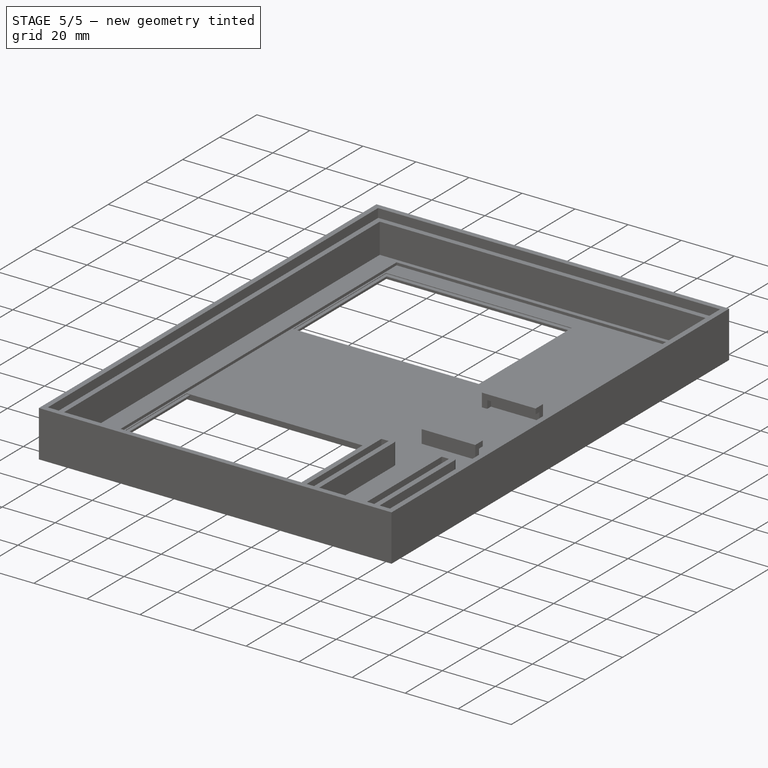
[diagram: stage 5 of 5 — iso view after this stage's code; geometry added in this stage tinted green]
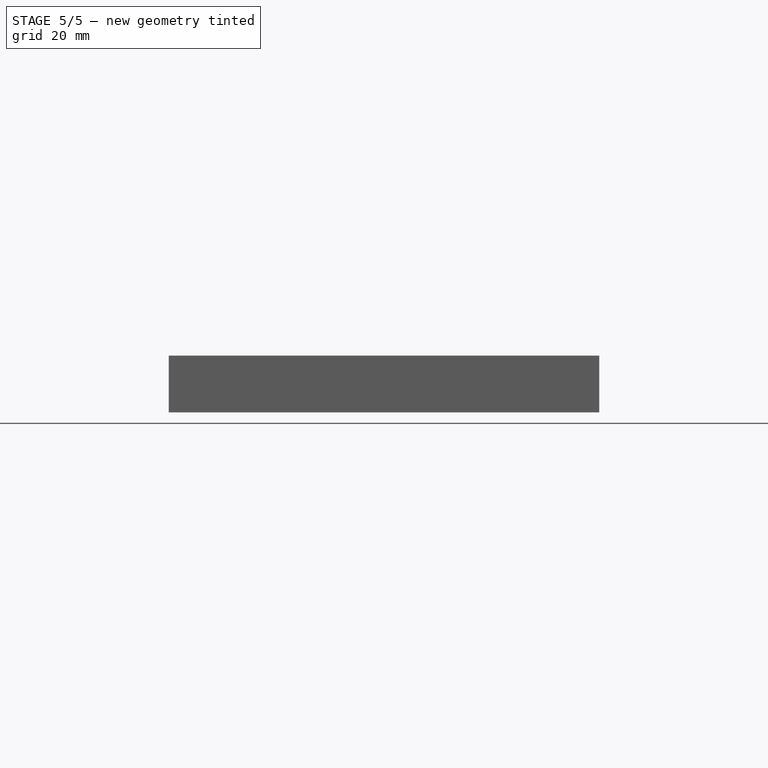
[diagram: stage 5 of 5 — front view after this stage's code; geometry added in this stage tinted green]
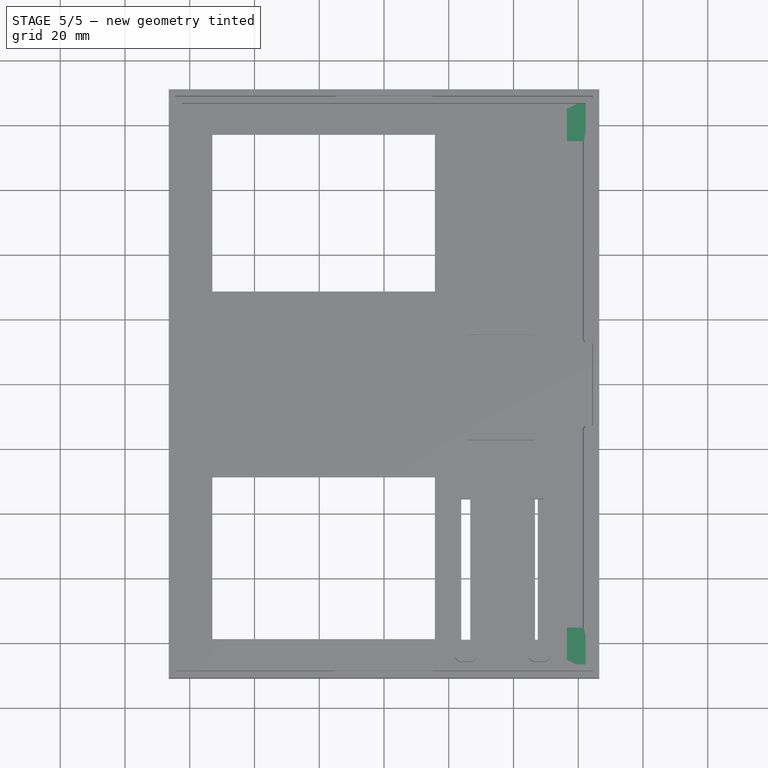
[diagram: stage 5 of 5 — top view after this stage's code; geometry added in this stage tinted green]
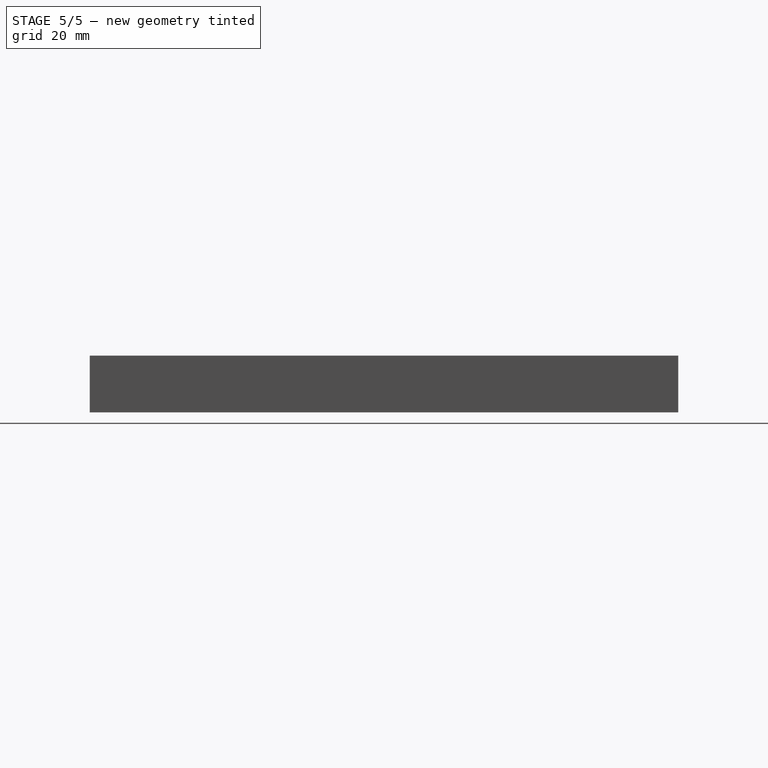
[diagram: stage 5 of 5 — right view after this stage's code; geometry added in this stage tinted green]
FEATURE [Sketcher::SketchObject] Sketch004  label="Screen Space Filler Sketch"
  ArcFitTolerance = 1e-06
  AttachmentSupport = -> [Pocket002]
  ExternalGeometry = -> [Pocket002]
  FullyConstrained = true
  MakeInternals = false
  MapMode = 5
  Placement = pos=(0,0,1.8) rot=(0,0,1;0rad)
  sketch-geometry (12):
    g0: LineSegment [constr] StartX=61.7 StartY=85.15 StartZ=0 EndX=61.7 EndY=75.15 EndZ=0
    g1: LineSegment [constr] StartX=61.7 StartY=-85.15 StartZ=0 EndX=61.7 EndY=-75.15 EndZ=0
    g2: LineSegment [constr] StartX=61.7 StartY=-85.15 StartZ=0 EndX=56.5 EndY=-85.15 EndZ=0
    g3: LineSegment [constr] StartX=61.7 StartY=85.15 StartZ=0 EndX=56.5 EndY=85.15 EndZ=0
    g4: LineSegment StartX=61.7 StartY=75.15 StartZ=0 EndX=61.7 EndY=85.15 EndZ=0
    g5: LineSegment StartX=61.7 StartY=85.15 StartZ=0 EndX=56.5 EndY=85.15 EndZ=0
    g6: LineSegment StartX=56.5 StartY=85.15 StartZ=0 EndX=56.5 EndY=75.15 EndZ=0
    g7: LineSegment StartX=56.5 StartY=75.15 StartZ=0 EndX=61.7 EndY=75.15 EndZ=0
    g8: LineSegment StartX=61.7 StartY=-75.15 StartZ=0 EndX=56.5 EndY=-75.15 EndZ=0
    g9: LineSegment StartX=56.5 StartY=-75.15 StartZ=0 EndX=56.5 EndY=-85.15 EndZ=0
    g10: LineSegment StartX=56.5 StartY=-85.15 StartZ=0 EndX=61.7 EndY=-85.15 EndZ=0
    g11: LineSegment StartX=61.7 StartY=-85.15 StartZ=0 EndX=61.7 EndY=-75.15 EndZ=0
  constraints (32):
    c: Distance(g0) = 10
    c: Coincident(g0,g-3)
    c: PointOnObject(g0,g-3)
    c: Distance(g1) = 10
    c: Coincident(g1,g-4)
    c: PointOnObject(g1,g-4)
    c: Distance(g2) = 5.2
    c: Coincident(g2,g1)
    c: Horizontal(g2)
    c: Distance(g3) = 5.2
    c: Coincident(g3,g0)
    c: Horizontal(g3)
    c: Coincident(g4,g5)
    c: Coincident(g5,g6)
    c: Coincident(g6,g7)
    c: Coincident(g7,g4)
    c: Vertical(g4)
    c: Vertical(g6)
    c: Horizontal(g5)
    c: Horizontal(g7)
    c: Coincident(g4,g0)
    c: Coincident(g5,g3)
    c: Coincident(g8,g9)
    c: Coincident(g9,g10)
    c: Coincident(g10,g11)
    c: Coincident(g11,g8)
    c: Horizontal(g8)
    c: Horizontal(g10)
    c: Vertical(g9)
    c: Vertical(g11)
    c: Coincident(g8,g1)
    c: Coincident(g9,g2)
FEATURE [PartDesign::Pad] Pad001  label="Screen Space Filler"
  BaseFeature = -> Pocket002
  Direction = (0,0,1)
  Length = 1.2
  Length2 = 10
  Profile = -> Sketch004
  ReferenceAxis = -> Sketch004 [N_Axis]
  Refine = true
  Suppressed = false
  Type = 0
FEATURE [PartDesign::Fillet] Fillet  label="Screen Cable Fillet"
  Base = -> Pad001 [Edge41,Edge42,Edge44,Edge43,Edge40,Edge70,Edge68,Edge53,Edge52]
  BaseFeature = -> Pad001
  Radius = 1
  Refine = true
  SupportTransform = false
  Suppressed = false
  UseAllEdges = false
FEATURE [Sketcher::SketchObject] Sketch005  label="Bottom Mount Sketch"
  ArcFitTolerance = 1e-06
  AttachmentSupport = -> [Fillet]
  FullyConstrained = true
  MakeInternals = false
  MapMode = 5
  Placement = pos=(0,-88.9,0) rot=(0,0.707107,0.707107;3.14159rad)
  sketch-geometry (3):
    g0: LineSegment [constr] StartX=0 StartY=0 StartZ=0 EndX=15 EndY=0 EndZ=0
    g1: LineSegment [constr] StartX=15 StartY=0 StartZ=0 EndX=15 EndY=12.5 EndZ=0
    g2: LineSegment StartX=15 StartY=12.5 StartZ=0 EndX=-15 EndY=12.5 EndZ=0
  constraints (9):
    c: Distance(g0) = 15
    c: Coincident(g0,g-1)
    c: PointOnObject(g0,g-1)
    c: Distance(g1) = 12.5
    c: Coincident(g1,g0)
    c: Vertical(g1)
    c: Distance(g2) = 30
    c: Coincident(g2,g1)
    c: Horizontal(g2)
FEATURE [PartDesign::AdditiveCylinder] Cylinder  label="Bottom Mount Cylinder"
  Angle = 180
  AttacherType = Attacher::AttachEngine3D
  AttachmentOffset = pos=(0,0,0) rot=(0,0,1;1.5708rad)
  AttachmentSupport = -> [Sketch005]
  BaseFeature = -> Fillet
  FirstAngle = 0
  Height = 30
  MapMode = 7
  Placement = pos=(15,-88.9,12.5) rot=(0,-1,0;1.5708rad)
  Radius = 1.1
  Refine = true
  SecondAngle = 0
  Suppressed = false
FEATURE [Sketcher::SketchObject] Sketch006  label="Top Mount Sketch"
  ArcFitTolerance = 1e-06
  AttachmentSupport = -> [Fillet]
  FullyConstrained = true
  MakeInternals = false
  MapMode = 5
  Placement = pos=(0,88.9,0) rot=(1,0,0;1.5708rad)
  sketch-geometry (3):
    g0: LineSegment [constr] StartX=0 StartY=0 StartZ=0 EndX=15 EndY=0 EndZ=0
    g1: LineSegment [constr] StartX=15 StartY=0 StartZ=0 EndX=15 EndY=12.5 EndZ=0
    g2: LineSegment StartX=15 StartY=12.5 StartZ=0 EndX=-15 EndY=12.5 EndZ=0
  constraints (9):
    c: Distance(g0) = 15
    c: Coincident(g0,g-1)
    c: PointOnObject(g0,g-1)
    c: Distance(g1) = 12.5
    c: Coincident(g1,g0)
    c: Vertical(g1)
    c: Distance(g2) = 30
    c: Coincident(g2,g1)
    c: Horizontal(g2)
FEATURE [PartDesign::AdditiveCylinder] Cylinder001  label="Top Mount Cylinder"
  Angle = 180
  AttacherType = Attacher::AttachEngine3D
  AttachmentOffset = pos=(0,0,0) rot=(0,0,1;1.5708rad)
  AttachmentSupport = -> [Sketch006]
  BaseFeature = -> Cylinder
  FirstAngle = 0
  Height = 30
  MapMode = 7
  Placement = pos=(-15,88.9,12.5) rot=(0.707107,0,0.707107;3.14159rad)
  Radius = 1.1
  Refine = true
  SecondAngle = 0
  Suppressed = false
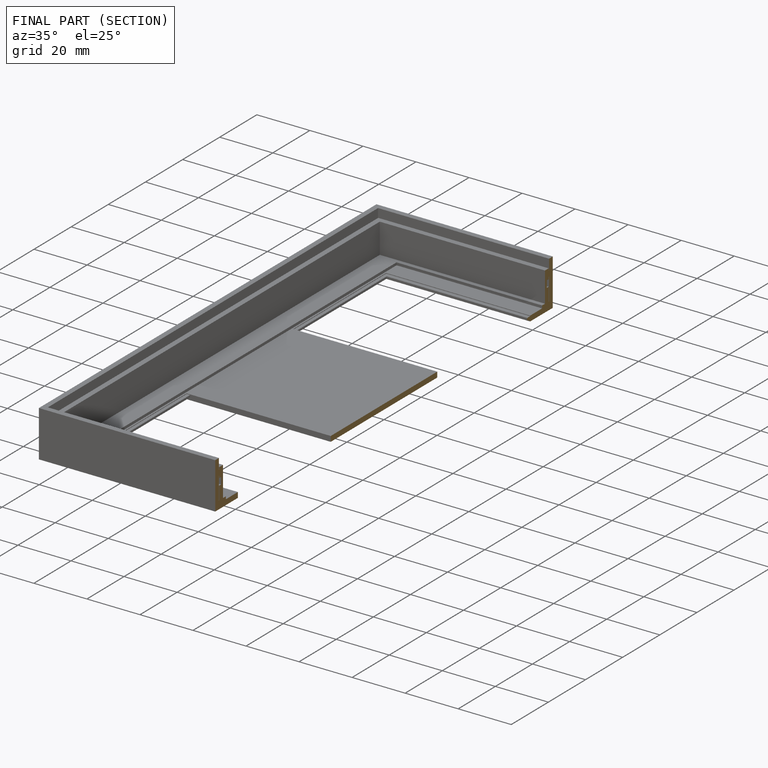
[diagram: finished part — half-section view (interior)]
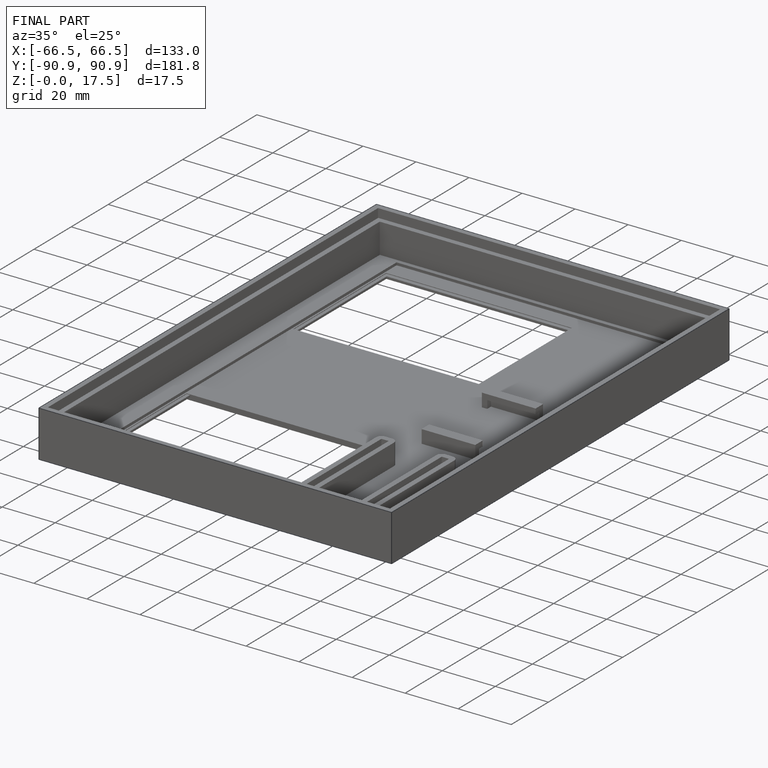
[diagram: finished part — iso view with bounding-box wireframe]
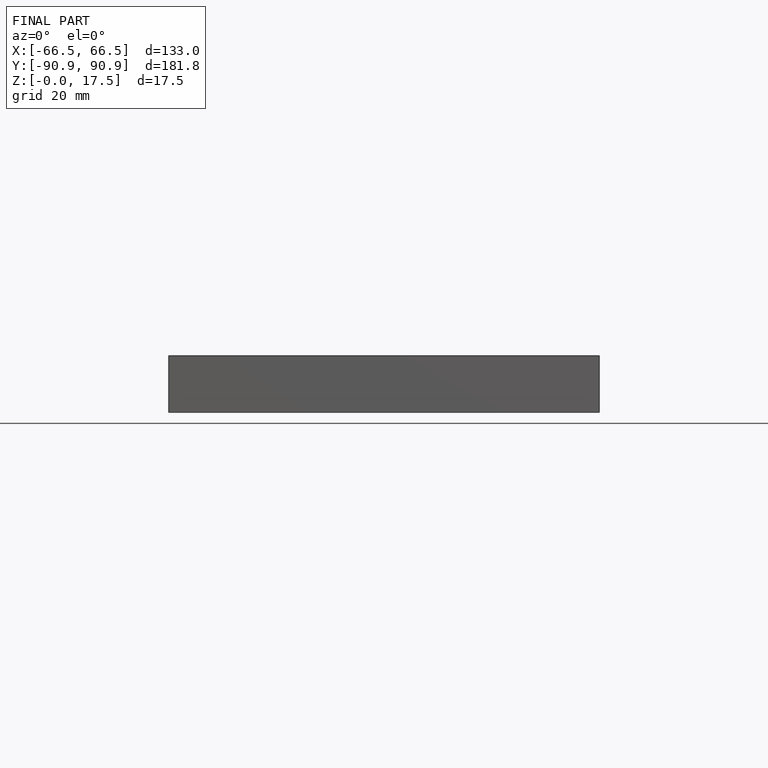
[diagram: finished part — front view with bounding-box wireframe]
